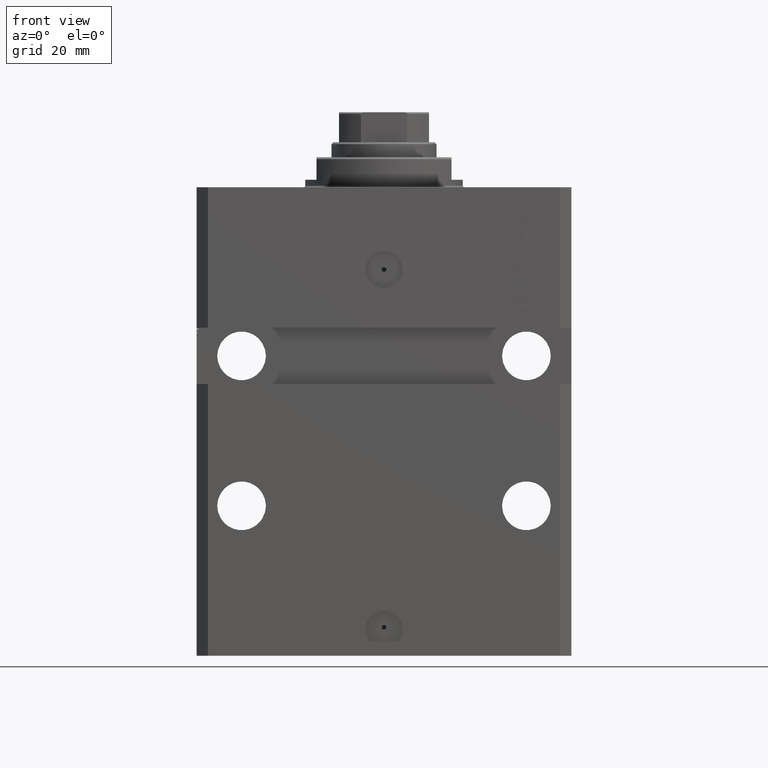
[diagram: clean part render]
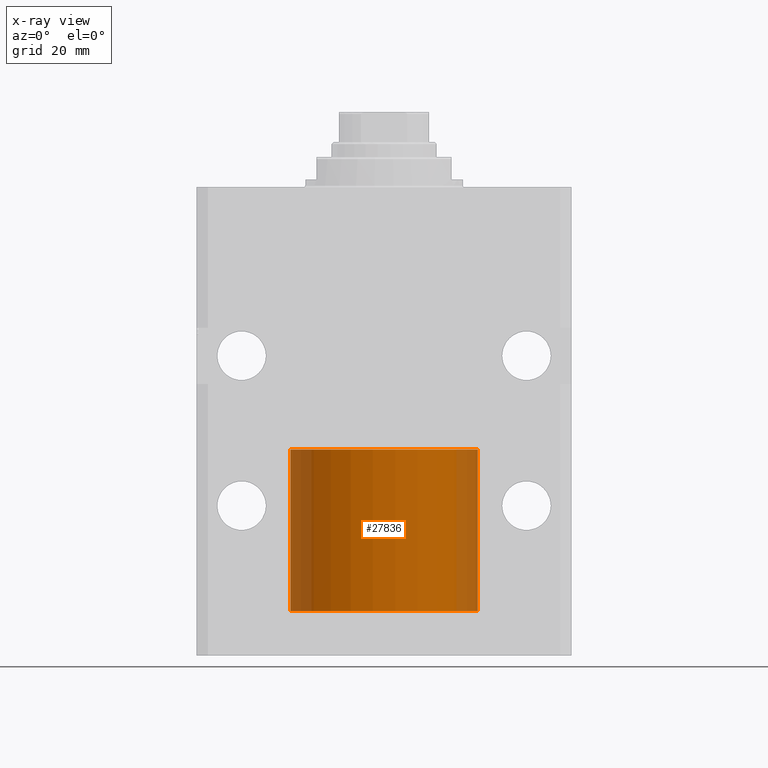
[diagram: x-ray — body ghosted, one internal face saturated and labeled with its STEP entity id]
A machine part, front view, then the same camera in x-ray: the body is ghosted and one INTERNAL B-rep face — a face not visible from any outside direction — is saturated and labeled: STEP entity #27836.
In plain terms, the highlighted cylindrical surface (partial cylindrical patch) has radius 25 mm, axis along (-0, -0, -1).
Its self-contained STEP definition (entity closure, byte-faithful):
#69 = AXIS2_PLACEMENT_3D ( 'NONE', #15199, #25460, #30068 ) ;
#623 = AXIS2_PLACEMENT_3D ( 'NONE', #14025, #10125, #24767 ) ;
#3308 = CARTESIAN_POINT ( 'NONE',  ( -25.00000000000000000, 0.000000000000000000, 43.10000000000000142 ) ) ;
#6124 = CARTESIAN_POINT ( 'NONE',  ( 0.000000000000000000, 0.000000000000000000, 0.000000000000000000 ) ) ;
#6841 = DIRECTION ( 'NONE',  ( 0.000000000000000000, 0.000000000000000000, 1.000000000000000000 ) ) ;
#8648 = DIRECTION ( 'NONE',  ( -0.000000000000000000, -0.000000000000000000, -1.000000000000000000 ) ) ;
#10125 = DIRECTION ( 'NONE',  ( 0.000000000000000000, 0.000000000000000000, 1.000000000000000000 ) ) ;
#10570 = AXIS2_PLACEMENT_3D ( 'NONE', #6124, #6841, #20980 ) ;
#10625 = CARTESIAN_POINT ( 'NONE',  ( 25.00000000000000000, 3.061616997868383043E-15, 43.10000000000000142 ) ) ;
#14025 = CARTESIAN_POINT ( 'NONE',  ( 0.000000000000000000, 0.000000000000000000, 43.10000000000000142 ) ) ;
#14576 = CIRCLE ( 'NONE', #623, 25.00000000000000000 ) ;
#15199 = CARTESIAN_POINT ( 'NONE',  ( 0.000000000000000000, 0.000000000000000000, 43.10000000000000142 ) ) ;
#16877 = ORIENTED_EDGE ( 'NONE', *, *, #46709, .F. ) ;
#20588 = VERTEX_POINT ( 'NONE', #43319 ) ;
#20980 = DIRECTION ( 'NONE',  ( 1.000000000000000000, 0.000000000000000000, 0.000000000000000000 ) ) ;
#23649 = VERTEX_POINT ( 'NONE', #10625 ) ;
#23665 = LINE ( 'NONE', #38550, #34304 ) ;
#24767 = DIRECTION ( 'NONE',  ( 1.000000000000000000, 0.000000000000000000, 0.000000000000000000 ) ) ;
#25460 = DIRECTION ( 'NONE',  ( -0.000000000000000000, -0.000000000000000000, -1.000000000000000000 ) ) ;
#26077 = VECTOR ( 'NONE', #8648, 1000.000000000000000 ) ;
#27836 = ADVANCED_FACE ( 'NONE', ( #40339 ), #33971, .T. ) ;
#28392 = EDGE_CURVE ( 'NONE', #37296, #20588, #23665, .T. ) ;
#28570 = ORIENTED_EDGE ( 'NONE', *, *, #43900, .T. ) ;
#30060 = CIRCLE ( 'NONE', #10570, 25.00000000000000000 ) ;
#30068 = DIRECTION ( 'NONE',  ( -1.000000000000000000, 0.000000000000000000, 0.000000000000000000 ) ) ;
#30201 = EDGE_LOOP ( 'NONE', ( #33643, #16877, #34642, #28570 ) ) ;
#33643 = ORIENTED_EDGE ( 'NONE', *, *, #40830, .F. ) ;
#33971 = CYLINDRICAL_SURFACE ( 'NONE', #69, 25.00000000000000000 ) ;
#34304 = VECTOR ( 'NONE', #46091, 1000.000000000000000 ) ;
#34642 = ORIENTED_EDGE ( 'NONE', *, *, #28392, .T. ) ;
#37296 = VERTEX_POINT ( 'NONE', #3308 ) ;
#38394 = LINE ( 'NONE', #45944, #26077 ) ;
#38550 = CARTESIAN_POINT ( 'NONE',  ( -25.00000000000000000, 0.000000000000000000, 43.10000000000000142 ) ) ;
#38620 = VERTEX_POINT ( 'NONE', #44804 ) ;
#40339 = FACE_OUTER_BOUND ( 'NONE', #30201, .T. ) ;
#40830 = EDGE_CURVE ( 'NONE', #23649, #38620, #38394, .T. ) ;
#43319 = CARTESIAN_POINT ( 'NONE',  ( -25.00000000000000000, 0.000000000000000000, 0.000000000000000000 ) ) ;
#43900 = EDGE_CURVE ( 'NONE', #20588, #38620, #30060, .T. ) ;
#44804 = CARTESIAN_POINT ( 'NONE',  ( 25.00000000000000000, 3.061616997868383043E-15, 0.000000000000000000 ) ) ;
#45944 = CARTESIAN_POINT ( 'NONE',  ( 25.00000000000000000, 3.061616997868383043E-15, 43.10000000000000142 ) ) ;
#46091 = DIRECTION ( 'NONE',  ( -0.000000000000000000, -0.000000000000000000, -1.000000000000000000 ) ) ;
#46709 = EDGE_CURVE ( 'NONE', #37296, #23649, #14576, .T. ) ;